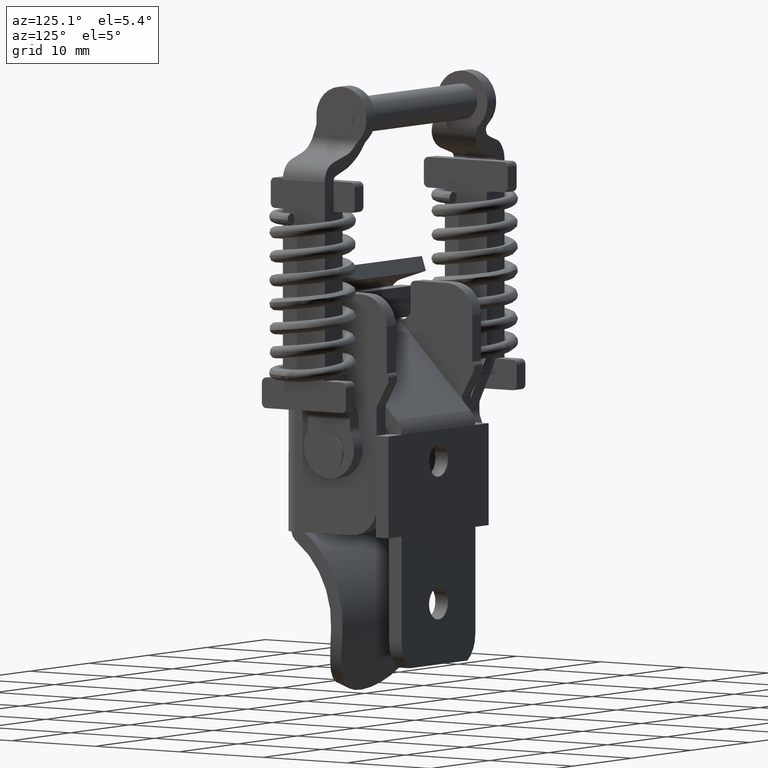
[diagram: clean part render]
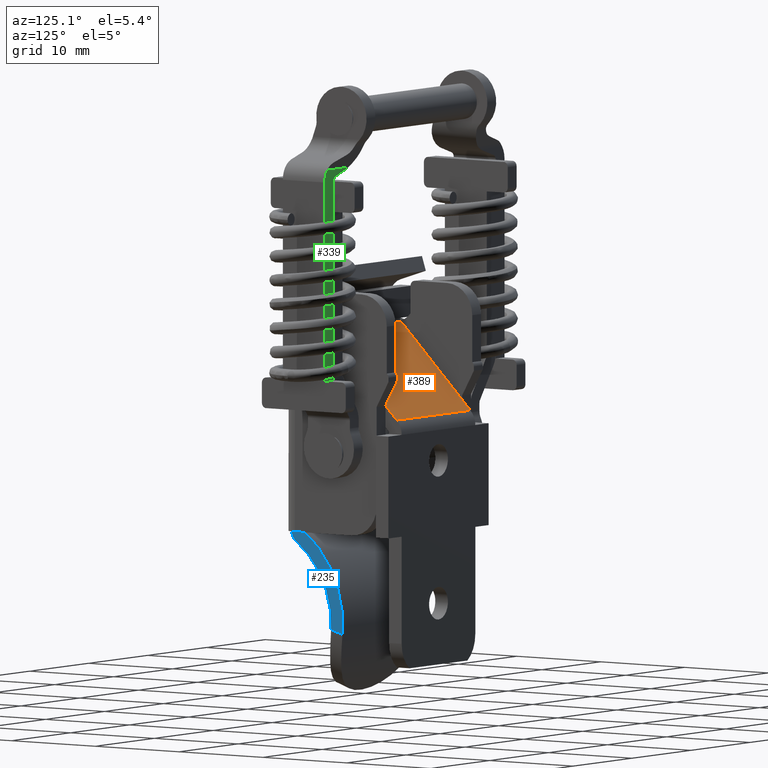
[diagram: same view with three faces highlighted in distinct colors, each labeled with its STEP entity id]
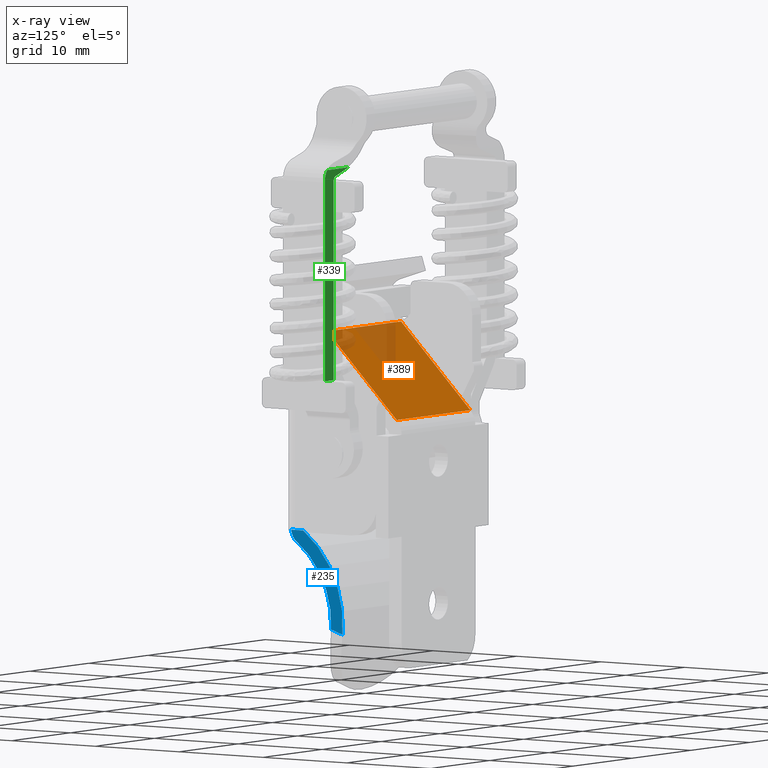
[diagram: x-ray of the same camera — body ghosted, the three highlighted faces saturated]
A machine part, auxiliary view with three faces highlighted in distinct colors.
The next image is the same camera in x-ray (body ghosted, the three faces saturated) — at least one of them is partly hidden behind the body in this view.
Their STEP definitions:

[orange] entity #389 — the highlighted planar face has unit normal (0, 0.7063, 0.7079).
#389=ADVANCED_FACE('',(#2035),#2034,.T.);
#2034=PLANE('',#5846);
#2035=FACE_OUTER_BOUND('',#5847,.T.);
#5843=CARTESIAN_POINT('',(-1.25000000000E+00,1.73910743642E+00,2.35752681813E+01));
#5844=DIRECTION('',(0.00000000000E+00,7.06269971740E-01,7.07942601499E-01));
#5845=DIRECTION('',(0.00000000000E+00,-7.07942601499E-01,7.06269971740E-01));
#5846=AXIS2_PLACEMENT_3D('',#5843,#5844,#5845);
#5847=EDGE_LOOP('',(#7042,#7043,#7044,#7045));
#7042=ORIENTED_EDGE('',*,*,#7808,.F.);
#7043=ORIENTED_EDGE('',*,*,#7818,.T.);
#7044=ORIENTED_EDGE('',*,*,#7791,.F.);
#7045=ORIENTED_EDGE('',*,*,#7819,.F.);
#7791=EDGE_CURVE('',#10683,#10684,#10685,.T.);
#7808=EDGE_CURVE('',#10790,#10797,#10798,.T.);
#7818=EDGE_CURVE('',#10790,#10684,#10858,.T.);
#7819=EDGE_CURVE('',#10797,#10683,#10864,.T.);
#10683=VERTEX_POINT('',#14132);
#10684=VERTEX_POINT('',#14133);
#10685=LINE('',#14134,#14135);
#10790=VERTEX_POINT('',#14197);
#10797=VERTEX_POINT('',#14202);
#10798=LINE('',#14203,#14204);
#10858=LINE('',#14234,#14235);
#10864=LINE('',#14237,#14238);
#14132=CARTESIAN_POINT('',(1.25000000000E+01,9.12539943481E-01,2.43998827739E+01));
#14133=CARTESIAN_POINT('',(1.25000000000E+01,-7.35313498587E+00,3.26460286993E+01));
#14134=CARTESIAN_POINT('',(1.25000000000E+01,9.12539943481E-01,2.43998827739E+01));
#14135=VECTOR('',#14136,1.16756286623E+01);
#14136=DIRECTION('',(0.00000000000E+00,-7.07942601499E-01,7.06269971740E-01));
#14197=CARTESIAN_POINT('',(0.00000000000E+00,-7.35313498587E+00,3.26460286993E+01));
#14202=CARTESIAN_POINT('',(0.00000000000E+00,9.12539943481E-01,2.43998827739E+01));
#14203=CARTESIAN_POINT('',(0.00000000000E+00,-7.35313498587E+00,3.26460286993E+01));
#14204=VECTOR('',#14205,1.16756286623E+01);
#14205=DIRECTION('',(0.00000000000E+00,7.07942601499E-01,-7.06269971740E-01));
#14234=CARTESIAN_POINT('',(0.00000000000E+00,-7.35313498587E+00,3.26460286993E+01));
#14235=VECTOR('',#14236,1.25000000000E+01);
#14236=DIRECTION('',(1.00000000000E+00,0.00000000000E+00,0.00000000000E+00));
#14237=CARTESIAN_POINT('',(0.00000000000E+00,9.12539943481E-01,2.43998827739E+01));
#14238=VECTOR('',#14239,1.25000000000E+01);
#14239=DIRECTION('',(1.00000000000E+00,0.00000000000E+00,0.00000000000E+00));

[blue] entity #235 — the highlighted planar face has unit normal (1, 0, 0).
#235=ADVANCED_FACE('',(#485),#484,.T.);
#484=PLANE('',#2708);
#485=FACE_OUTER_BOUND('',#2709,.T.);
#2705=CARTESIAN_POINT('',(6.50000000000E+00,-6.61896906532E-01,-1.09621453984E+01));
#2706=DIRECTION('',(1.00000000000E+00,0.00000000000E+00,0.00000000000E+00));
#2707=DIRECTION('',(0.00000000000E+00,1.00000000000E+00,0.00000000000E+00));
#2708=AXIS2_PLACEMENT_3D('',#2705,#2706,#2707);
#2709=EDGE_LOOP('',(#6211,#6212,#6213,#6214,#6215));
#6211=ORIENTED_EDGE('',*,*,#7397,.T.);
#6212=ORIENTED_EDGE('',*,*,#7398,.T.);
#6213=ORIENTED_EDGE('',*,*,#7390,.T.);
#6214=ORIENTED_EDGE('',*,*,#7399,.T.);
#6215=ORIENTED_EDGE('',*,*,#7386,.F.);
#7386=EDGE_CURVE('',#7980,#7981,#7982,.T.);
#7390=EDGE_CURVE('',#8008,#8009,#8010,.T.);
#7397=EDGE_CURVE('',#7980,#8055,#8056,.T.);
#7398=EDGE_CURVE('',#8055,#8008,#8062,.T.);
#7399=EDGE_CURVE('',#8009,#7981,#8068,.T.);
#7980=VERTEX_POINT('',#11934);
#7981=VERTEX_POINT('',#11935);
#7982=CIRCLE('',#11939,1.09934992355E+01);
#8008=VERTEX_POINT('',#11989);
#8009=VERTEX_POINT('',#11990);
#8010=CIRCLE('',#11994,9.61062537653E+00);
#8055=VERTEX_POINT('',#12053);
#8056=LINE('',#12054,#12055);
#8062=CIRCLE('',#12060,1.50000000000E+00);
#8068=LINE('',#12061,#12062);
#11934=CARTESIAN_POINT('',(6.50000000000E+00,1.43597860987E+00,0.00000000000E+00));
#11935=CARTESIAN_POINT('',(6.50000000000E+00,6.10956738231E+00,-9.96558672581E+00));
#11936=CARTESIAN_POINT('',(6.50000000000E+00,-4.84349923548E+00,-9.02359038467E+00));
#11937=DIRECTION('',(-1.00000000000E+00,1.65581704155E-17,-1.15227597720E-17));
#11938=DIRECTION('',(3.08148791102E-33,-5.71199188797E-01,-8.20811480620E-01));
#11939=AXIS2_PLACEMENT_3D('',#11936,#11937,#11938);
#11989=CARTESIAN_POINT('',(6.50000000000E+00,6.43590164302E-01,-1.13334513837E+00));
#11990=CARTESIAN_POINT('',(6.50000000000E+00,4.75432044701E+00,-9.51955154290E+00));
#11991=CARTESIAN_POINT('',(6.50000000000E+00,-4.84349923548E+00,-9.02359038467E+00));
#11992=DIRECTION('',(-1.00000000000E+00,-1.95188714152E-17,1.35739497436E-17));
#11993=DIRECTION('',(1.07852076886E-32,-5.70939890466E-01,-8.20991864439E-01));
#11994=AXIS2_PLACEMENT_3D('',#11991,#11992,#11993);
#12053=CARTESIAN_POINT('',(6.50000000000E+00,3.21410394704E-03,0.00000000000E+00));
#12054=CARTESIAN_POINT('',(6.50000000000E+00,1.43597860987E+00,0.00000000000E+00));
#12055=VECTOR('',#12056,1.43276450592E+00);
#12056=DIRECTION('',(0.00000000000E+00,-1.00000000000E+00,0.00000000000E+00));
#12057=CARTESIAN_POINT('',(6.50000000000E+00,1.50000000000E+00,9.81426582936E-02));
#12058=DIRECTION('',(1.00000000000E+00,-5.29533095371E-15,-6.89089658124E-16));
#12059=DIRECTION('',(5.32907051820E-15,9.97857264035E-01,6.54284388624E-02));
#12060=AXIS2_PLACEMENT_3D('',#12057,#12058,#12059);
#12061=CARTESIAN_POINT('',(6.50000000000E+00,4.75432044701E+00,-9.51955154290E+00));
#12062=VECTOR('',#12063,1.42675913876E+00);
#12063=DIRECTION('',(0.00000000000E+00,9.49877872503E-01,-3.12621220215E-01));

[green] entity #339 — the highlighted planar face has unit normal (0, 1, 0).
#339=ADVANCED_FACE('',(#1533),#1532,.T.);
#1532=PLANE('',#3236);
#1533=FACE_OUTER_BOUND('',#3237,.T.);
#3233=CARTESIAN_POINT('',(-1.00001091996E+00,2.24801335924E+01,-2.75673475948E+01));
#3234=DIRECTION('',(-1.00000000000E+00,0.00000000000E+00,-1.05449873689E-12));
#3235=DIRECTION('',(-1.05449873689E-12,0.00000000000E+00,1.00000000000E+00));
#3236=AXIS2_PLACEMENT_3D('',#3233,#3234,#3235);
#3237=EDGE_LOOP('',(#6796,#6797,#6798,#6799,#6800,#6801,#6802,#6803));
#6796=ORIENTED_EDGE('',*,*,#7563,.F.);
#6797=ORIENTED_EDGE('',*,*,#7661,.T.);
#6798=ORIENTED_EDGE('',*,*,#7679,.F.);
#6799=ORIENTED_EDGE('',*,*,#7638,.F.);
#6800=ORIENTED_EDGE('',*,*,#7650,.T.);
#6801=ORIENTED_EDGE('',*,*,#7662,.F.);
#6802=ORIENTED_EDGE('',*,*,#7570,.F.);
#6803=ORIENTED_EDGE('',*,*,#7568,.T.);
#7563=EDGE_CURVE('',#9166,#9167,#9168,.T.);
#7568=EDGE_CURVE('',#9199,#9167,#9200,.T.);
#7570=EDGE_CURVE('',#9199,#9212,#9213,.T.);
#7638=EDGE_CURVE('',#9662,#9669,#9670,.T.);
#7650=EDGE_CURVE('',#9662,#9745,#9752,.T.);
#7661=EDGE_CURVE('',#9166,#9821,#9828,.T.);
#7662=EDGE_CURVE('',#9212,#9745,#9834,.T.);
#7679=EDGE_CURVE('',#9669,#9821,#9940,.T.);
#9166=VERTEX_POINT('',#12760);
#9167=VERTEX_POINT('',#12761);
#9168=CIRCLE('',#12765,2.00000000000E+00);
#9199=VERTEX_POINT('',#12783);
#9200=LINE('',#12784,#12785);
#9212=VERTEX_POINT('',#12793);
#9213=CIRCLE('',#12797,2.99999999999E+00);
#9662=VERTEX_POINT('',#13084);
#9669=VERTEX_POINT('',#13088);
#9670=LINE('',#13089,#13090);
#9745=VERTEX_POINT('',#13136);
#9752=CIRCLE('',#13143,5.00000000000E-01);
#9821=VERTEX_POINT('',#13184);
#9828=LINE('',#13188,#13189);
#9834=LINE('',#13191,#13192);
#9940=LINE('',#13246,#13247);
#12760=CARTESIAN_POINT('',(-1.00001091999E+00,2.68500000000E+01,-6.00633180821E+00));
#12761=CARTESIAN_POINT('',(-1.00001091999E+00,2.64649469522E+01,-4.82652405202E+00));
#12762=CARTESIAN_POINT('',(-1.00001091999E+00,2.48500000000E+01,-6.00633180821E+00));
#12763=DIRECTION('',(1.00000000000E+00,-2.66453525910E-14,1.04197507749E-12));
#12764=DIRECTION('',(-2.66453525910E-14,-1.00000000000E+00,7.54951656745E-15));
#12765=AXIS2_PLACEMENT_3D('',#12762,#12763,#12764);
#12783=CARTESIAN_POINT('',(-1.00001091999E+00,2.28773941749E+01,-4.82652405202E+00));
#12784=CARTESIAN_POINT('',(-1.00001091999E+00,2.28773941749E+01,-4.82652405202E+00));
#12785=VECTOR('',#12786,3.58755277733E+00);
#12786=DIRECTION('',(0.00000000000E+00,1.00000000000E+00,0.00000000000E+00));
#12793=CARTESIAN_POINT('',(-1.00001091999E+00,2.31792121376E+01,-4.94215262162E+00));
#12794=CARTESIAN_POINT('',(-1.00001091999E+00,2.41000000000E+01,-2.08695565602E+00));
#12795=DIRECTION('',(1.00000000000E+00,-1.55680042711E-13,7.14641906783E-13));
#12796=DIRECTION('',(-5.89158351736E-13,4.07535275041E-01,9.13189465334E-01));
#12797=AXIS2_PLACEMENT_3D('',#12794,#12795,#12796);
#13084=CARTESIAN_POINT('',(-1.00001091999E+00,2.53500000000E+01,-6.00633180821E+00));
#13088=CARTESIAN_POINT('',(-1.00001091997E+00,2.53500000000E+01,-2.55000000000E+01));
#13089=CARTESIAN_POINT('',(-1.00001091999E+00,2.53500000000E+01,-6.00633180821E+00));
#13090=VECTOR('',#13091,1.94936681918E+01);
#13091=DIRECTION('',(1.05418877243E-12,0.00000000000E+00,-1.00000000000E+00));
#13136=CARTESIAN_POINT('',(-1.00001091999E+00,2.50034646437E+01,-5.53046564728E+00));
#13140=CARTESIAN_POINT('',(-1.00001091999E+00,2.48500000000E+01,-6.00633180821E+00));
#13141=DIRECTION('',(1.00000000000E+00,-7.54951656736E-15,1.04407701635E-12));
#13142=DIRECTION('',(-7.54951656745E-15,-1.00000000000E+00,8.34887714518E-14));
#13143=AXIS2_PLACEMENT_3D('',#13140,#13141,#13142);
#13184=CARTESIAN_POINT('',(-1.00001091997E+00,2.68500000000E+01,-2.55000000000E+01));
#13188=CARTESIAN_POINT('',(-1.00001091999E+00,2.68500000000E+01,-6.00633180821E+00));
#13189=VECTOR('',#13190,1.94936681918E+01);
#13190=DIRECTION('',(1.05470134949E-12,0.00000000000E+00,-1.00000000000E+00));
#13191=CARTESIAN_POINT('',(-1.00001091999E+00,2.31792121376E+01,-4.94215262162E+00));
#13192=VECTOR('',#13193,1.91677057114E+00);
#13193=DIRECTION('',(3.23433876899E-13,9.51732321869E-01,-3.06929287475E-01));
#13246=CARTESIAN_POINT('',(-1.00001091997E+00,2.53500000000E+01,-2.55000000000E+01));
#13247=VECTOR('',#13248,1.50000000000E+00);
#13248=DIRECTION('',(0.00000000000E+00,1.00000000000E+00,0.00000000000E+00));